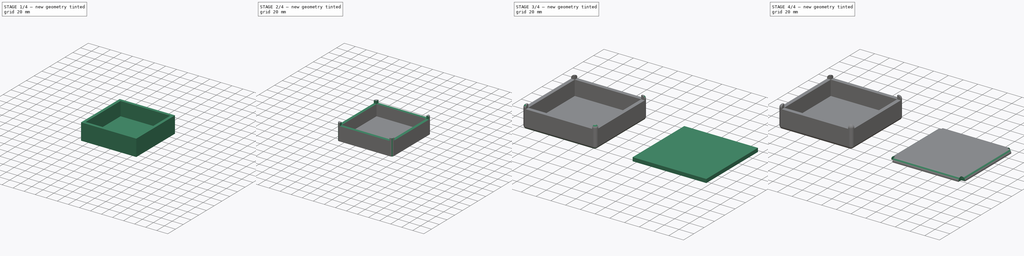
[diagram: build sequence overview — one tinted view per stage of 4, left to right]
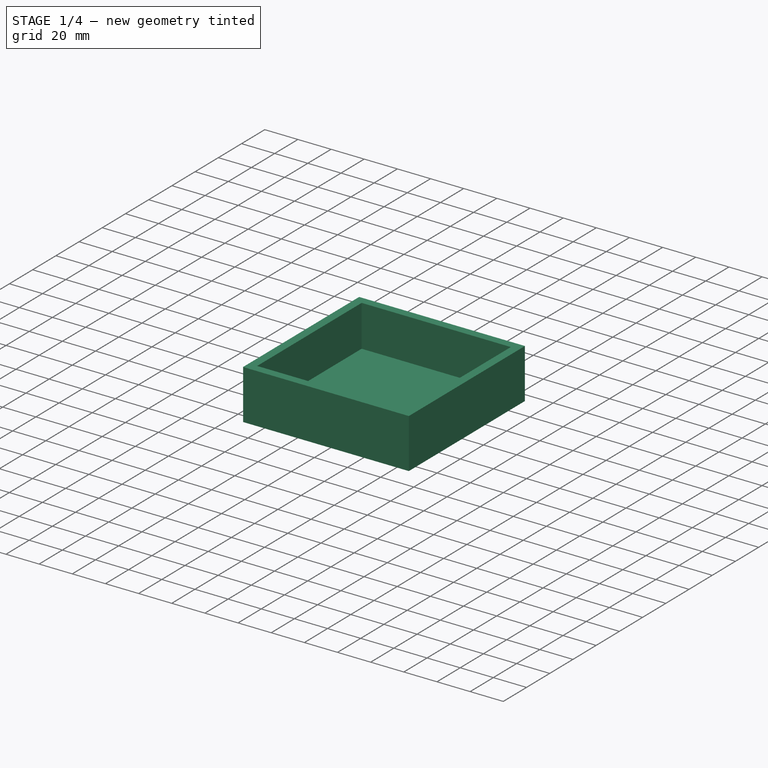
[diagram: stage 1 of 4 — iso view after this stage's code; geometry added in this stage tinted green]
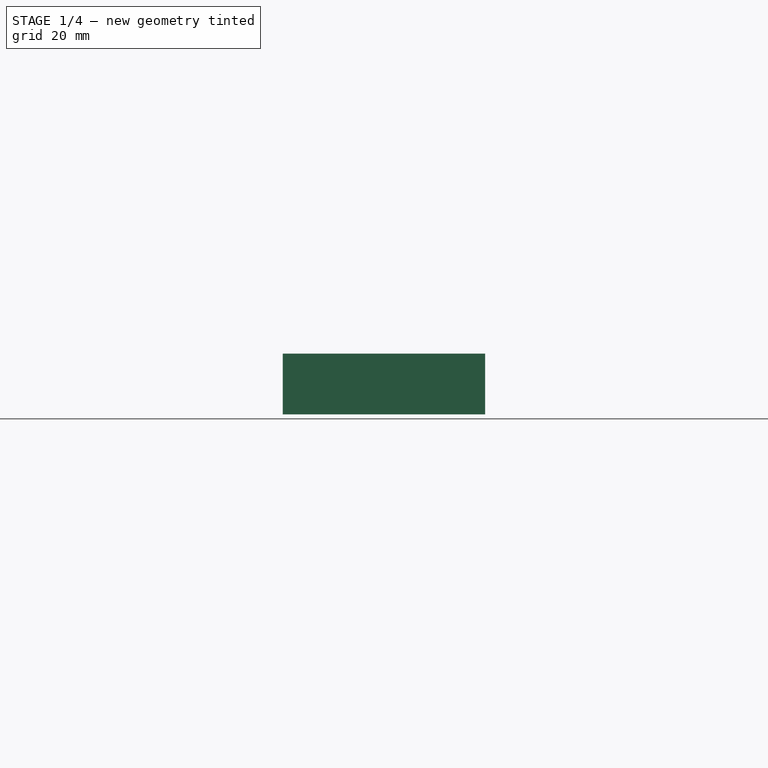
[diagram: stage 1 of 4 — front view after this stage's code; geometry added in this stage tinted green]
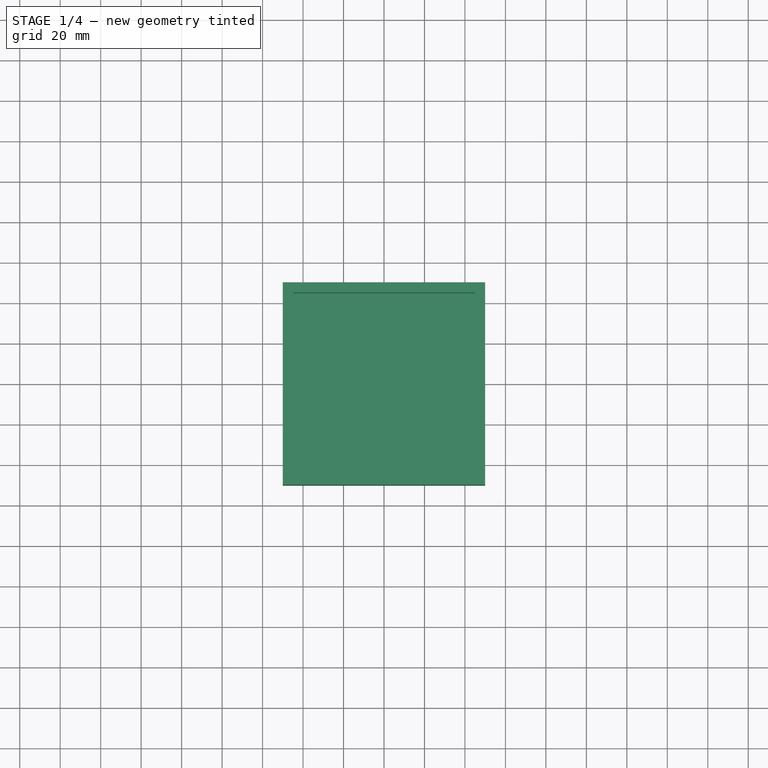
[diagram: stage 1 of 4 — top view after this stage's code; geometry added in this stage tinted green]
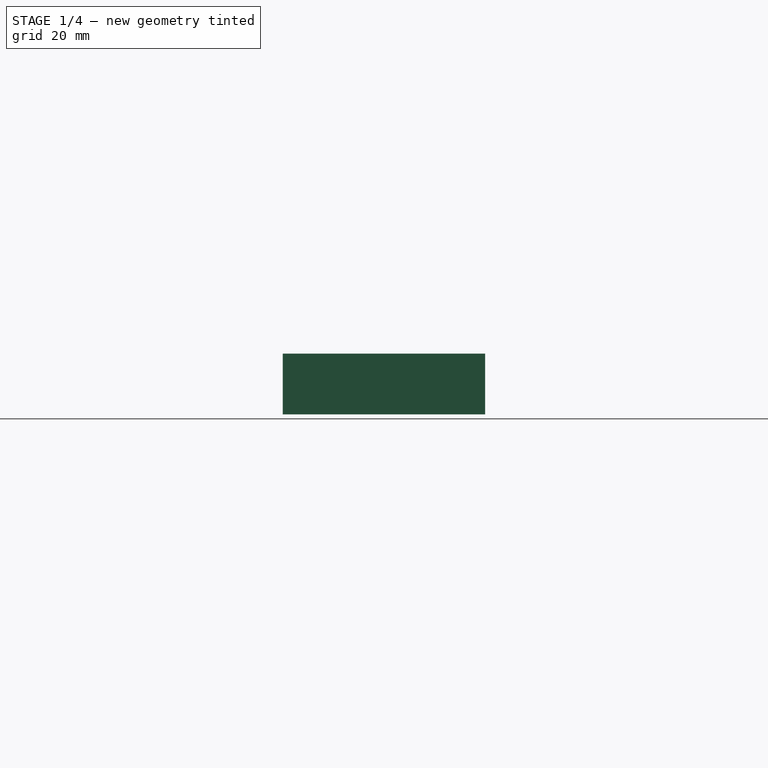
[diagram: stage 1 of 4 — right view after this stage's code; geometry added in this stage tinted green]
FCSTD DOCUMENT  (FreeCAD 0.21R33771 (Git))
Label: SmallBox
License: All rights reserved
LicenseURL: https://en.wikipedia.org/wiki/All_rights_reserved
objects: Sketcher::SketchObject×5, PartDesign::Fillet×4, PartDesign::Pocket×3, PartDesign::Pad×2, PartDesign::Body×2
note: 25 computed .brp shape members not serialized (recipe doc carries the construction recipe); baked Part::Feature solids carry a one-line shape summary decoded from their .brp

FEATURE [Sketcher::SketchObject] Sketch  label="BoxS"
  FullyConstrained = true
  MapMode = 5
  Support = -> [XY_Plane]
  sketch-geometry (5):
    g0: LineSegment StartX=-50 StartY=50 StartZ=0 EndX=-50 EndY=-50 EndZ=0
    g1: LineSegment StartX=-50 StartY=-50 StartZ=0 EndX=50 EndY=-50 EndZ=0
    g2: LineSegment StartX=50 StartY=-50 StartZ=0 EndX=50 EndY=50 EndZ=0
    g3: LineSegment StartX=50 StartY=50 StartZ=0 EndX=-50 EndY=50 EndZ=0
    g4: GeomPoint X=0 Y=0 Z=0
  constraints (12):
    c: Coincident(g0,g1)
    c: Coincident(g1,g2)
    c: Coincident(g2,g3)
    c: Coincident(g3,g0)
    c: Horizontal(g1)
    c: Horizontal(g3)
    c: Vertical(g0)
    c: Vertical(g2)
    c: Symmetric(g1,g0,g4)
    c: Coincident(g-1,g4)
    c: Distance(g3) = 100
    c: Distance(g0) = 100
FEATURE [PartDesign::Pad] Pad  label="Box"
  Direction = (0,0,1)
  Length = 30
  Length2 = 10
  Profile = -> Sketch
  ReferenceAxis = -> Sketch [N_Axis]
  Type = 0
FEATURE [Sketcher::SketchObject] Sketch001  label="InsetS"
  FullyConstrained = true
  MapMode = 5
  Placement = pos=(0,0,30) rot=(0,0,1;0rad)
  Support = -> [Pad]
  sketch-geometry (5):
    g0: LineSegment StartX=-45 StartY=45 StartZ=0 EndX=-45 EndY=-45 EndZ=0
    g1: LineSegment StartX=-45 StartY=-45 StartZ=0 EndX=45 EndY=-45 EndZ=0
    g2: LineSegment StartX=45 StartY=-45 StartZ=0 EndX=45 EndY=45 EndZ=0
    g3: LineSegment StartX=45 StartY=45 StartZ=0 EndX=-45 EndY=45 EndZ=0
    g4: GeomPoint X=0 Y=0 Z=0
  constraints (12):
    c: Coincident(g0,g1)
    c: Coincident(g1,g2)
    c: Coincident(g2,g3)
    c: Coincident(g3,g0)
    c: Horizontal(g1)
    c: Horizontal(g3)
    c: Vertical(g0)
    c: Vertical(g2)
    c: Symmetric(g1,g0,g4)
    c: Coincident(g4,g-1)
    c: Distance(g3) = 90
    c: Distance(g0) = 90
FEATURE [PartDesign::Pocket] Pocket  label="Inset"
  BaseFeature = -> Pad
  Direction = (0,0,-1)
  Length = 25
  Length2 = 5
  Profile = -> Sketch001
  ReferenceAxis = -> Sketch001 [N_Axis]
  Type = 0
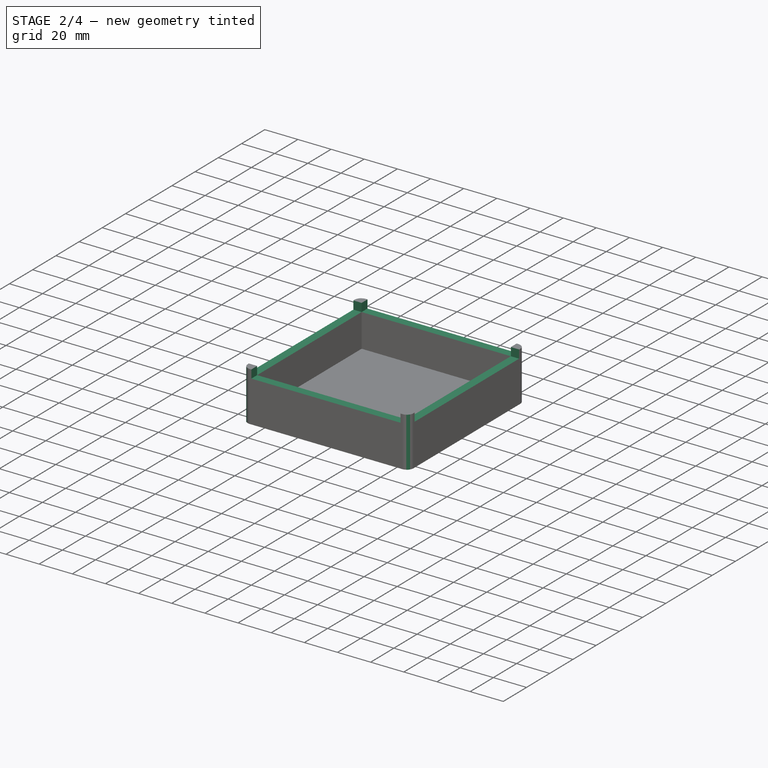
[diagram: stage 2 of 4 — iso view after this stage's code; geometry added in this stage tinted green]
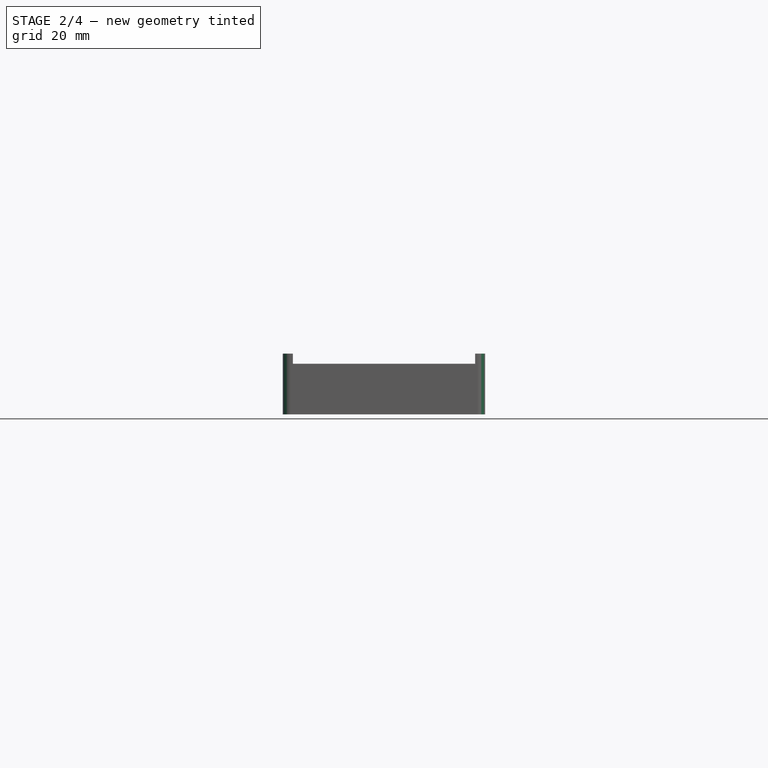
[diagram: stage 2 of 4 — front view after this stage's code; geometry added in this stage tinted green]
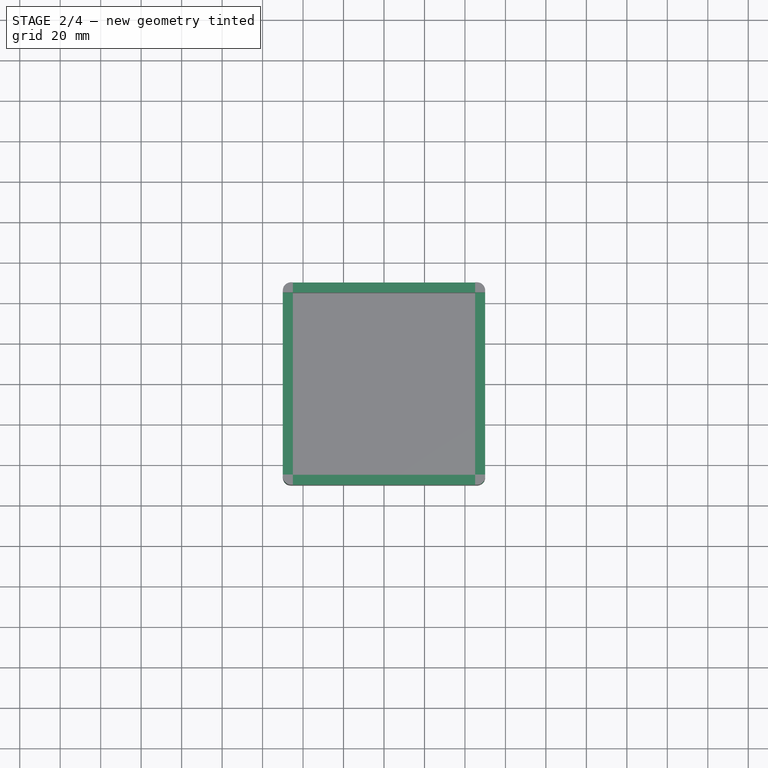
[diagram: stage 2 of 4 — top view after this stage's code; geometry added in this stage tinted green]
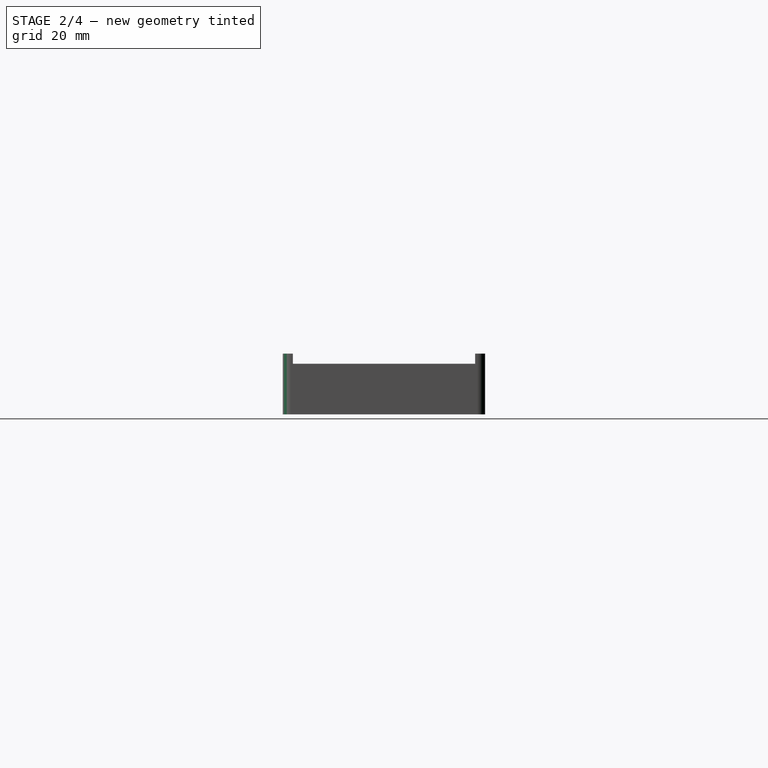
[diagram: stage 2 of 4 — right view after this stage's code; geometry added in this stage tinted green]
FEATURE [Sketcher::SketchObject] Sketch003  label="LidInsetS"
  ExternalGeometry = -> [Pocket]
  FullyConstrained = true
  MapMode = 5
  Placement = pos=(0,0,30) rot=(0,0,1;0rad)
  Support = -> [Pocket]
  sketch-geometry (12):
    g0: LineSegment StartX=-45 StartY=50 StartZ=0 EndX=-45 EndY=45 EndZ=0
    g1: LineSegment StartX=-45 StartY=45 StartZ=0 EndX=-50 EndY=45 EndZ=0
    g2: LineSegment StartX=-50 StartY=45 StartZ=0 EndX=-50 EndY=-45 EndZ=0
    g3: LineSegment StartX=-50 StartY=-45 StartZ=0 EndX=-45 EndY=-45 EndZ=0
    g4: LineSegment StartX=-45 StartY=-45 StartZ=0 EndX=-45 EndY=-50 EndZ=0
    g5: LineSegment StartX=-45 StartY=-50 StartZ=0 EndX=45 EndY=-50 EndZ=0
    g6: LineSegment StartX=45 StartY=-50 StartZ=0 EndX=45 EndY=-45 EndZ=0
    g7: LineSegment StartX=45 StartY=-45 StartZ=0 EndX=50 EndY=-45 EndZ=0
    g8: LineSegment StartX=50 StartY=-45 StartZ=0 EndX=50 EndY=45 EndZ=0
    g9: LineSegment StartX=50 StartY=45 StartZ=0 EndX=45 EndY=45 EndZ=0
    g10: LineSegment StartX=45 StartY=45 StartZ=0 EndX=45 EndY=50 EndZ=0
    g11: LineSegment StartX=45 StartY=50 StartZ=0 EndX=-45 EndY=50 EndZ=0
  constraints (32):
    c: Vertical(g0)
    c: Coincident(g0,g1)
    c: Horizontal(g1)
    c: Coincident(g1,g2)
    c: Vertical(g2)
    c: Coincident(g2,g3)
    c: Horizontal(g3)
    c: Coincident(g3,g4)
    c: Vertical(g4)
    c: Coincident(g4,g5)
    c: Horizontal(g5)
    c: Coincident(g5,g6)
    c: Vertical(g6)
    c: Coincident(g6,g7)
    c: Horizontal(g7)
    c: Coincident(g7,g8)
    c: Vertical(g8)
    c: Coincident(g8,g9)
    c: Horizontal(g9)
    c: Coincident(g9,g10)
    c: Coincident(g10,g11)
    c: Horizontal(g11)
    c: Coincident(g0,g11)
    c: Vertical(g10)
    c: Coincident(g-6,g9)
    c: Coincident(g-5,g0)
    c: Coincident(g6,g-3)
    c: Coincident(g3,g-4)
    c: Distance(g6) = 5
    c: Distance(g7) = 5
    c: Distance(g1) = 5
    c: Distance(g0) = 5
FEATURE [PartDesign::Pocket] Pocket001  label="LidInset"
  BaseFeature = -> Pocket
  Direction = (0,0,-1)
  Length = 5
  Length2 = 5
  Profile = -> Sketch003
  ReferenceAxis = -> Sketch003 [N_Axis]
  Type = 0
FEATURE [PartDesign::Fillet] Fillet
  Base = -> Pocket001 [Edge32,Edge12,Edge2,Edge8]
  BaseFeature = -> Pocket001
  Radius = 4
  SupportTransform = false
  UseAllEdges = false
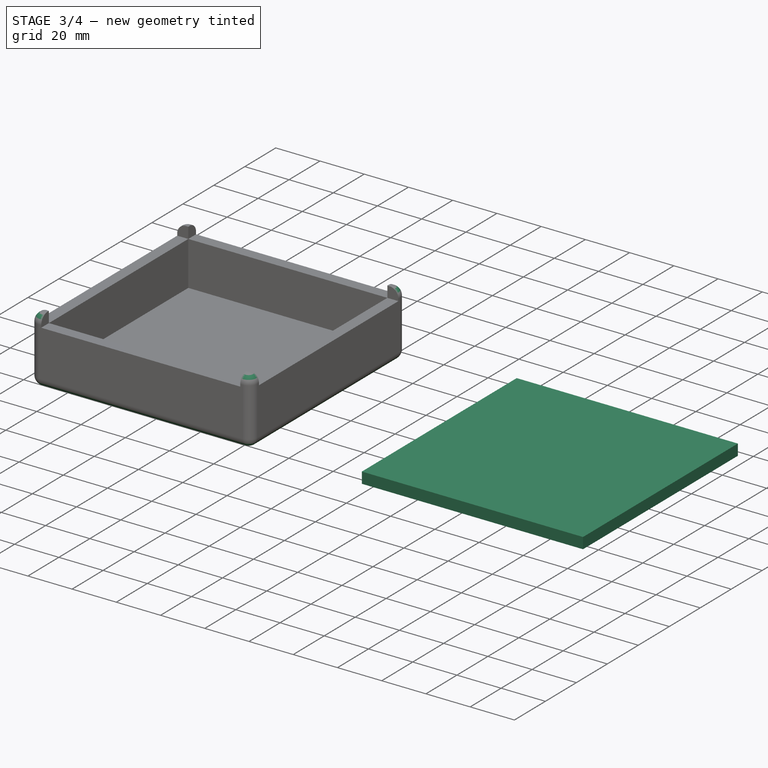
[diagram: stage 3 of 4 — iso view after this stage's code; geometry added in this stage tinted green]
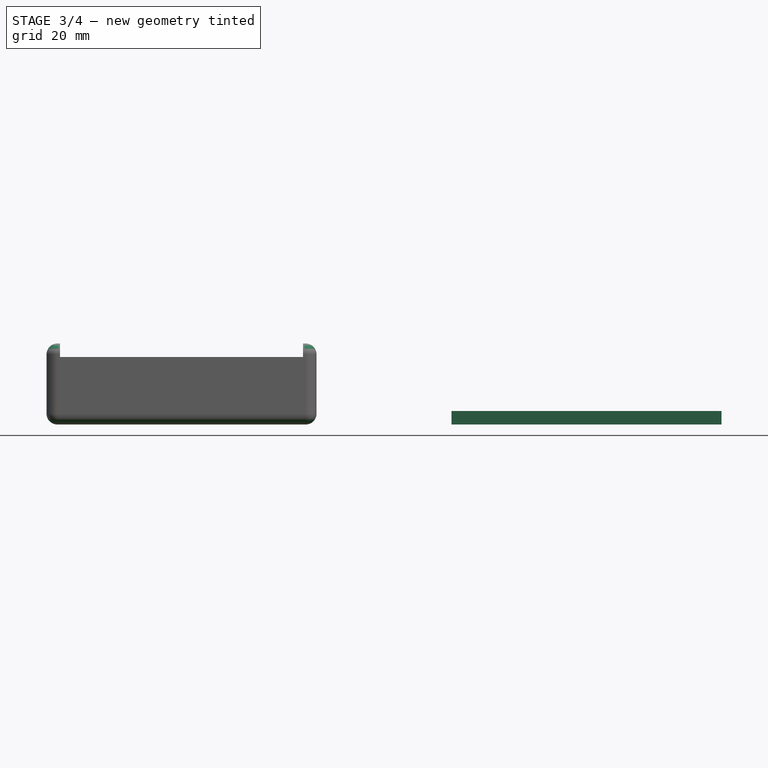
[diagram: stage 3 of 4 — front view after this stage's code; geometry added in this stage tinted green]
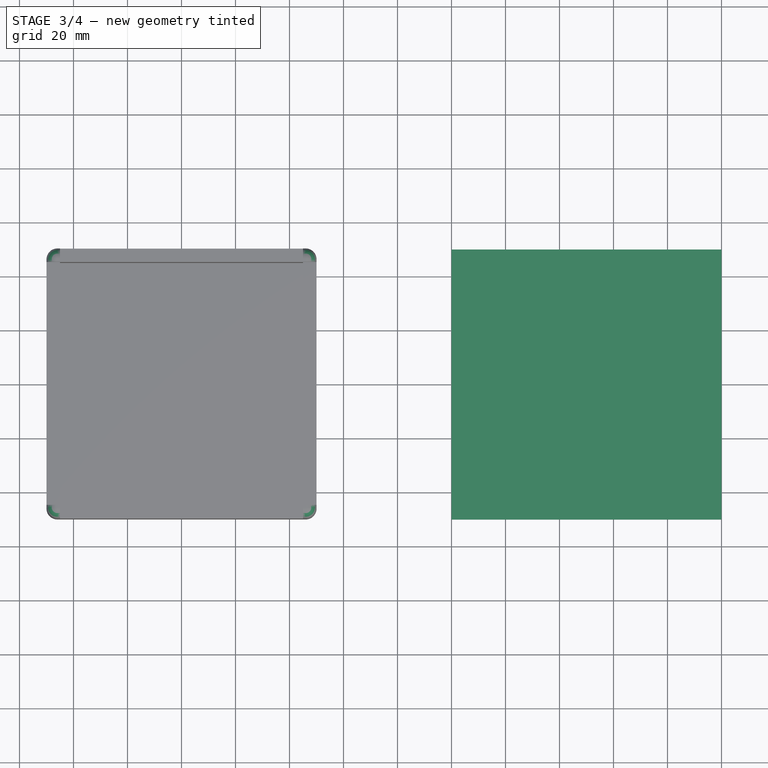
[diagram: stage 3 of 4 — top view after this stage's code; geometry added in this stage tinted green]
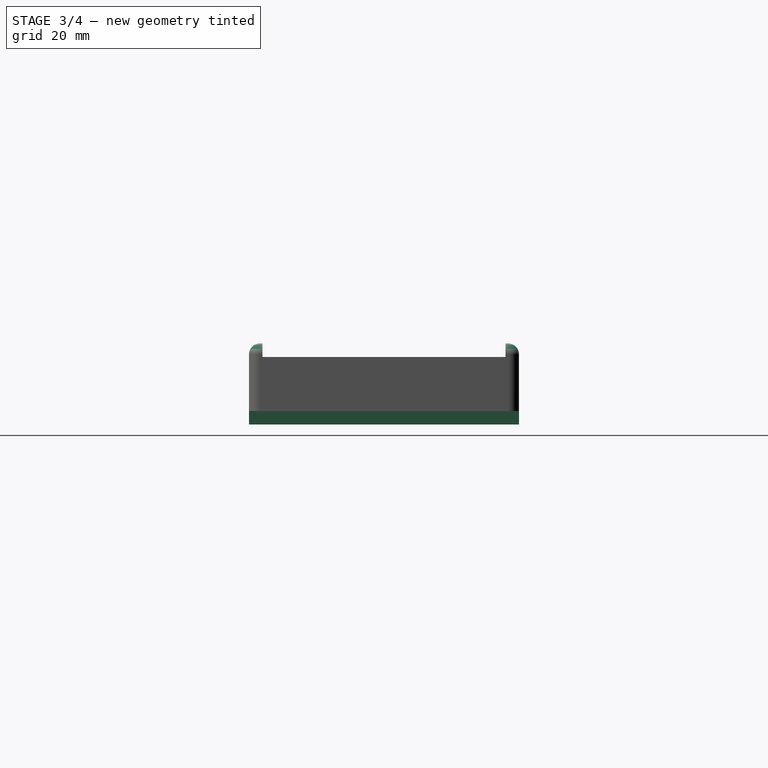
[diagram: stage 3 of 4 — right view after this stage's code; geometry added in this stage tinted green]
FEATURE [Sketcher::SketchObject] Sketch002  label="LidS"
  FullyConstrained = true
  MapMode = 5
  Support = -> [XY_Plane001]
  sketch-geometry (5):
    g0: LineSegment StartX=100 StartY=-50 StartZ=0 EndX=100 EndY=50 EndZ=0
    g1: LineSegment StartX=100 StartY=50 StartZ=0 EndX=200 EndY=50 EndZ=0
    g2: LineSegment StartX=200 StartY=50 StartZ=0 EndX=200 EndY=-50 EndZ=0
    g3: LineSegment StartX=200 StartY=-50 StartZ=0 EndX=100 EndY=-50 EndZ=0
    g4: GeomPoint X=150 Y=0 Z=0
  constraints (13):
    c: Coincident(g0,g1)
    c: Coincident(g1,g2)
    c: Coincident(g2,g3)
    c: Coincident(g3,g0)
    c: Horizontal(g1)
    c: Horizontal(g3)
    c: Vertical(g0)
    c: Vertical(g2)
    c: Symmetric(g1,g0,g4)
    c: PointOnObject(g4,g-1)
    c: Distance(g1) = 100
    c: Distance(g0) = 100
    c: DistanceX(g-1,g4) = 150
FEATURE [PartDesign::Pad] Pad001  label="Lid"
  Direction = (0,0,1)
  Length = 5
  Length2 = 10
  Profile = -> Sketch002
  ReferenceAxis = -> Sketch002 [N_Axis]
  Type = 0
FEATURE [PartDesign::Fillet] Fillet001
  Base = -> Fillet [Edge17,Edge42,Edge44,Edge19]
  BaseFeature = -> Fillet
  Radius = 4
  SupportTransform = false
  UseAllEdges = false
FEATURE [PartDesign::Body] Body001  label="BoxTop"
  Group = -> [Sketch002,Pad001,Sketch004,Pocket002,Fillet002]
  Origin = -> Origin001
  Tip = -> Fillet002
FEATURE [PartDesign::Fillet] Fillet003
  Base = -> Fillet001 [Edge15,Edge17,Edge19,Edge20,Edge18,Edge16,Edge10,Edge3]
  BaseFeature = -> Fillet001
  Radius = 4
  SupportTransform = false
  UseAllEdges = false
FEATURE [PartDesign::Body] Body  label="BoxBase"
  Group = -> [Sketch,Pad,Sketch001,Pocket,Sketch003,Pocket001,Fillet,Fillet001,Fillet003]
  Origin = -> Origin
  Tip = -> Fillet003
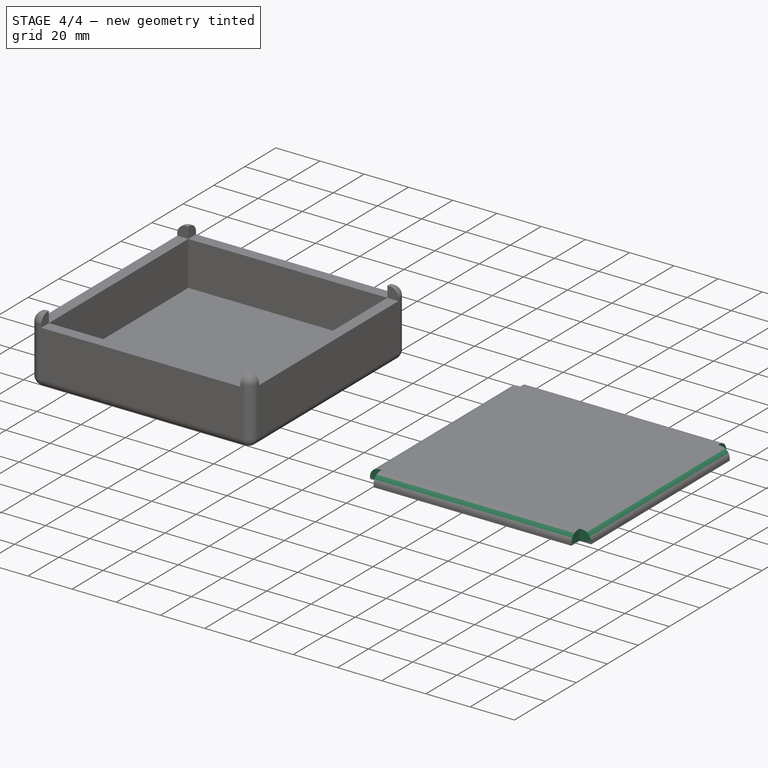
[diagram: stage 4 of 4 — iso view after this stage's code; geometry added in this stage tinted green]
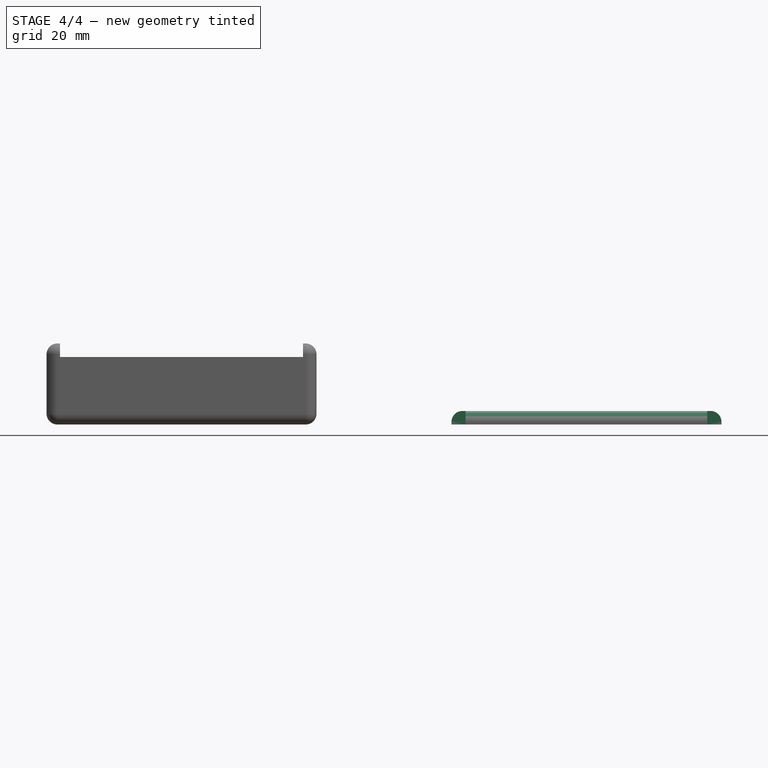
[diagram: stage 4 of 4 — front view after this stage's code; geometry added in this stage tinted green]
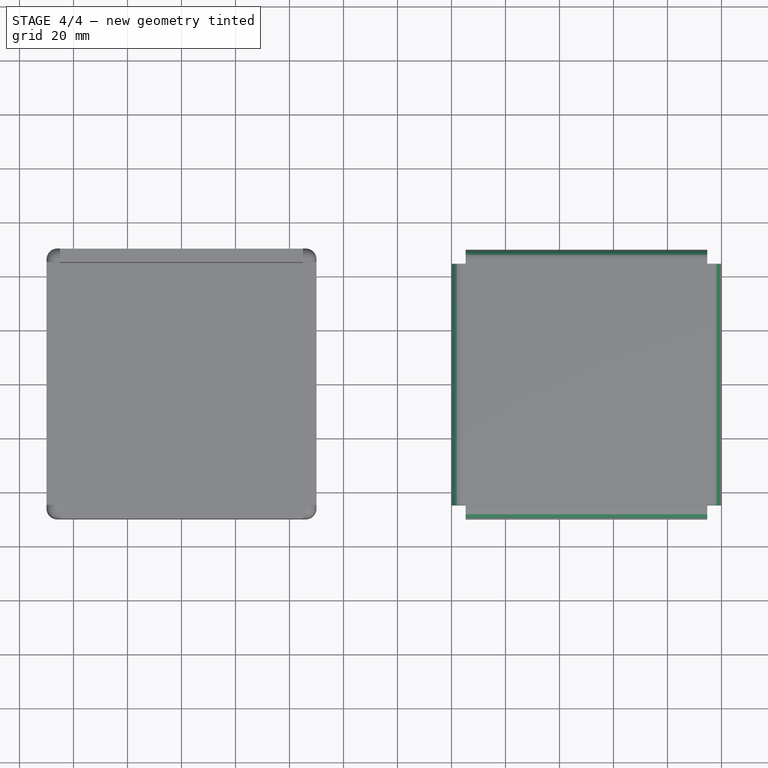
[diagram: stage 4 of 4 — top view after this stage's code; geometry added in this stage tinted green]
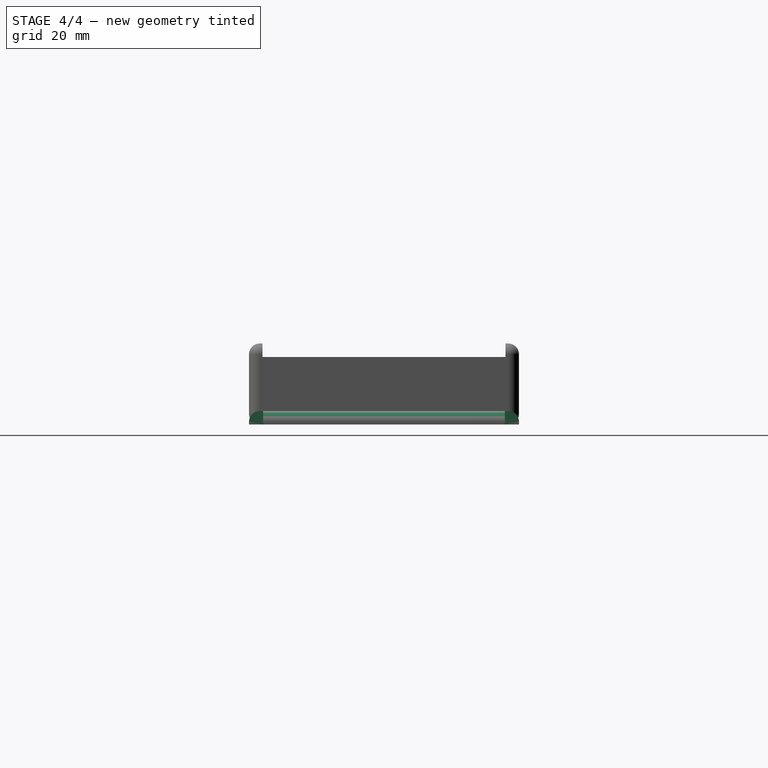
[diagram: stage 4 of 4 — right view after this stage's code; geometry added in this stage tinted green]
FEATURE [Sketcher::SketchObject] Sketch004  label="LidCornersS"
  ExternalGeometry = -> [Pad001]
  FullyConstrained = true
  MapMode = 5
  Placement = pos=(0,0,5) rot=(0,0,1;0rad)
  Support = -> [Pad001]
  sketch-geometry (16):
    g0: LineSegment StartX=100 StartY=50 StartZ=0 EndX=105.25 EndY=50 EndZ=0
    g1: LineSegment StartX=105.25 StartY=50 StartZ=0 EndX=105.25 EndY=44.75 EndZ=0
    g2: LineSegment StartX=105.25 StartY=44.75 StartZ=0 EndX=100 EndY=44.75 EndZ=0
    g3: LineSegment StartX=100 StartY=44.75 StartZ=0 EndX=100 EndY=50 EndZ=0
    g4: LineSegment StartX=194.75 StartY=50 StartZ=0 EndX=200 EndY=50 EndZ=0
    g5: LineSegment StartX=200 StartY=50 StartZ=0 EndX=200 EndY=44.75 EndZ=0
    g6: LineSegment StartX=200 StartY=44.75 StartZ=0 EndX=194.75 EndY=44.75 EndZ=0
    g7: LineSegment StartX=194.75 StartY=44.75 StartZ=0 EndX=194.75 EndY=50 EndZ=0
    g8: LineSegment StartX=100 StartY=-44.75 StartZ=0 EndX=105.25 EndY=-44.75 EndZ=0
    g9: LineSegment StartX=105.25 StartY=-44.75 StartZ=0 EndX=105.25 EndY=-50 EndZ=0
    g10: LineSegment StartX=105.25 StartY=-50 StartZ=0 EndX=100 EndY=-50 EndZ=0
    g11: LineSegment StartX=100 StartY=-50 StartZ=0 EndX=100 EndY=-44.75 EndZ=0
    g12: LineSegment StartX=200 StartY=-44.75 StartZ=0 EndX=194.75 EndY=-44.75 EndZ=0
    g13: LineSegment StartX=194.75 StartY=-44.75 StartZ=0 EndX=194.75 EndY=-50 EndZ=0
    g14: LineSegment StartX=194.75 StartY=-50 StartZ=0 EndX=200 EndY=-50 EndZ=0
    g15: LineSegment StartX=200 StartY=-50 StartZ=0 EndX=200 EndY=-44.75 EndZ=0
  constraints (44):
    c: Coincident(g0,g1)
    c: Coincident(g1,g2)
    c: Coincident(g2,g3)
    c: Coincident(g3,g0)
    c: Horizontal(g0)
    c: Horizontal(g2)
    c: Vertical(g1)
    c: Vertical(g3)
    c: Coincident(g4,g5)
    c: Coincident(g5,g6)
    c: Coincident(g6,g7)
    c: Coincident(g7,g4)
    c: Horizontal(g4)
    c: Horizontal(g6)
    c: Vertical(g5)
    c: Vertical(g7)
    c: Coincident(g8,g9)
    c: Coincident(g9,g10)
    c: Coincident(g10,g11)
    c: Coincident(g11,g8)
    c: Horizontal(g8)
    c: Horizontal(g10)
    c: Vertical(g9)
    c: Vertical(g11)
    c: Coincident(g12,g13)
    c: Coincident(g13,g14)
    c: Coincident(g14,g15)
    c: Coincident(g15,g12)
    c: Horizontal(g12)
    c: Horizontal(g14)
    c: Vertical(g13)
    c: Vertical(g15)
    c: Coincident(g-3,g0)
    c: Coincident(g4,g-6)
    c: Coincident(g10,g-4)
    c: Coincident(g-6,g14)
    c: Distance(g0) = 5.25
    c: Distance(g3) = 5.25
    c: Distance(g4) = 5.25
    c: Distance(g5) = 5.25
    c: Distance(g15) = 5.25
    c: Distance(g14) = 5.25
    c: Distance(g11) = 5.25
    c: Distance(g10) = 5.25
FEATURE [PartDesign::Pocket] Pocket002  label="LidCorners"
  BaseFeature = -> Pad001
  Direction = (0,0,-1)
  Length = 5
  Length2 = 5
  Profile = -> Sketch004
  ReferenceAxis = -> Sketch004 [N_Axis]
  Type = 1
FEATURE [PartDesign::Fillet] Fillet002
  Base = -> Pocket002 [Edge19,Edge22,Edge25,Edge3]
  BaseFeature = -> Pocket002
  Radius = 4
  SupportTransform = false
  UseAllEdges = false
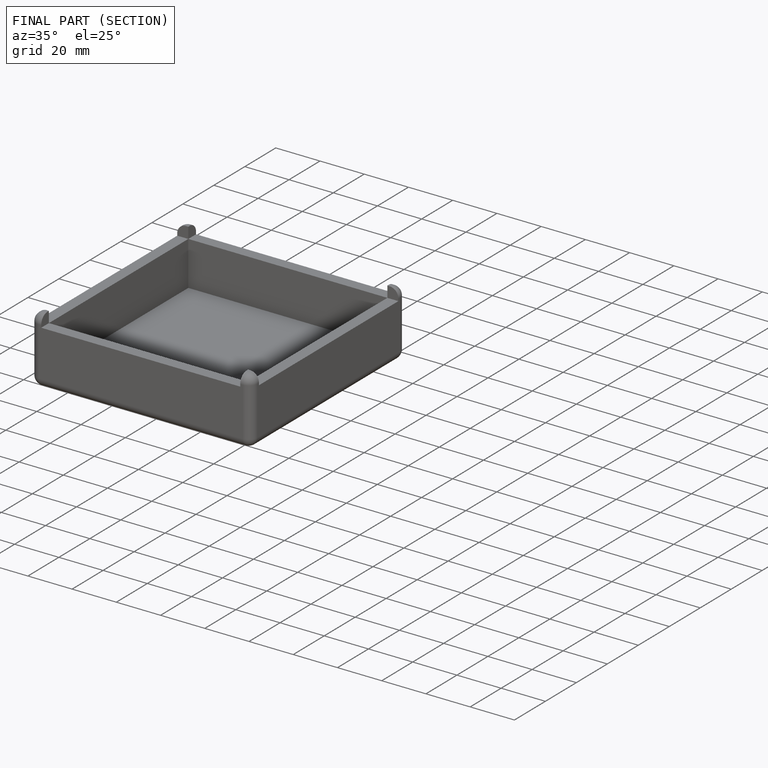
[diagram: finished part — half-section view (interior)]
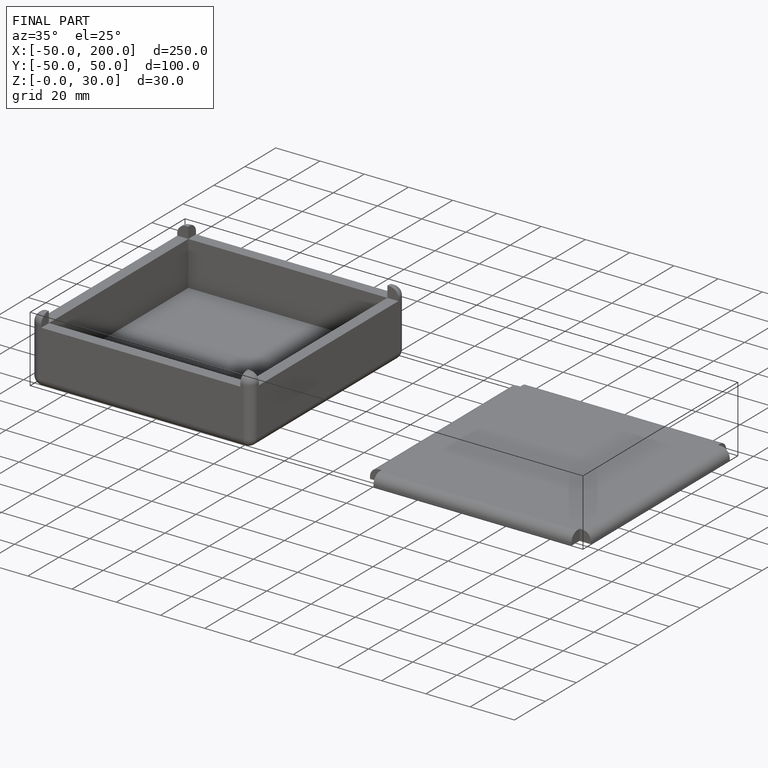
[diagram: finished part — iso view with bounding-box wireframe]
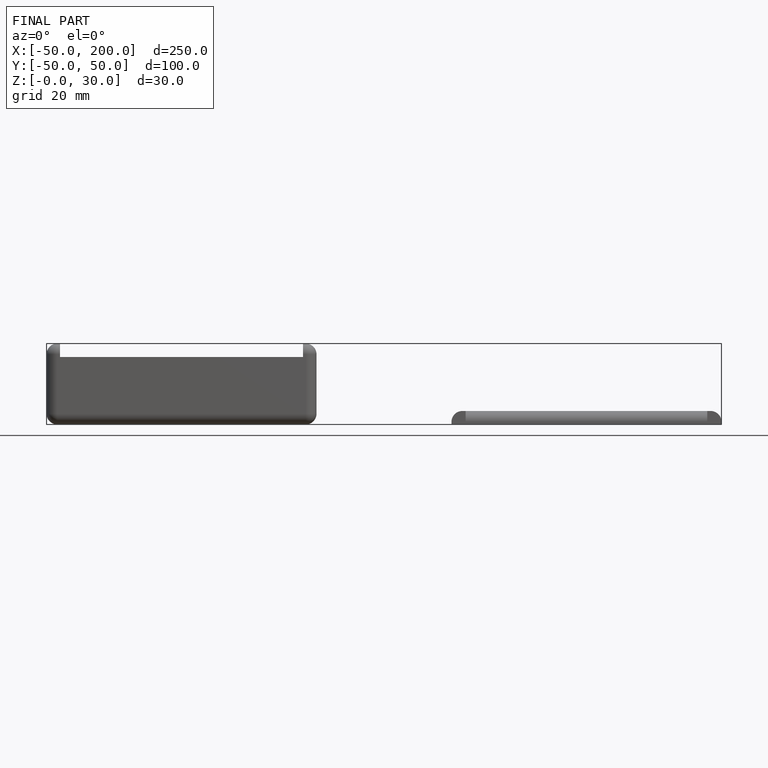
[diagram: finished part — front view with bounding-box wireframe]
